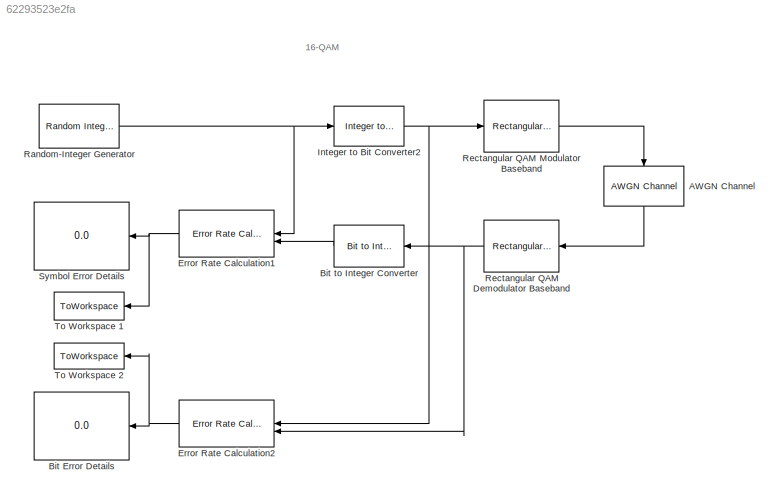
MODEL slx_62293523e2fa
KIND model
CONFIG AbsTol = 1e-6
CONFIG EnableMultiTasking = off
CONFIG FixedStep = auto
CONFIG MaxStep = auto
CONFIG MinStep = auto
CONFIG PreLoadFcn = EbNo=3;maxNumErrs=100;maxNumBits=1e8;M=8;Tsym=.2;
CONFIG RelTol = 1e-3
CONFIG SampleTimeConstraint = Unconstrained
CONFIG SolverName = FixedStepDiscrete
CONFIG StartTime = 0.0
CONFIG StopTime = inf
BLOCK [Reference] AWGN Channel  REF=commchan3/AWGN
Channel
  NameLocation = left
  SourceBlock = commchan3/AWGN\nChannel
  SourceType = AWGN Channel
  UserDataPersistent = on
BLOCK [Display] Bit Error Details
  Decimation = 1
BLOCK [Reference] Bit to Integer Converter  REF=simulink/Logic and Bit
Operations/Bit to Integer
Converter
  LibrarySourceBlock = commutil2/Bit to Integer\nConverter
  SourceBlock = simulink/Logic and Bit\nOperations/Bit to Integer\nConverter
  SourceType = Bit to Integer Converter
BLOCK [Reference] Error Rate Calculation1  REF=commsink2/Error Rate
Calculation
  SourceBlock = commsink2/Error Rate\nCalculation
  SourceType = Error Rate Calculation
BLOCK [Reference] Error Rate Calculation2  REF=commsink2/Error Rate
Calculation
  SourceBlock = commsink2/Error Rate\nCalculation
  SourceType = Error Rate Calculation
BLOCK [Reference] Integer to Bit Converter2  REF=simulink/Logic and Bit
Operations/Integer to Bit
Converter
  LibrarySourceBlock = commutil2/Integer to Bit\nConverter
  NameLocation = top
  SourceBlock = simulink/Logic and Bit\nOperations/Integer to Bit\nConverter
  SourceType = Integer to Bit Converter
BLOCK [Reference] Random-Integer Generator  REF=commrandsrc3/Random Integer
Generator
  SourceBlock = commrandsrc3/Random Integer\nGenerator
  SourceType = Random Integer Generator
BLOCK [Reference] Rectangular QAM Demodulator Baseband  REF=commdigbbndam3/Rectangular QAM
Demodulator
Baseband
  SourceBlock = commdigbbndam3/Rectangular QAM\nDemodulator\nBaseband
  SourceType = Rectangular QAM Demodulator Baseband
BLOCK [Reference] Rectangular QAM Modulator Baseband  REF=commdigbbndam3/Rectangular QAM
Modulator
Baseband
  SourceBlock = commdigbbndam3/Rectangular QAM\nModulator\nBaseband
  SourceType = Rectangular QAM Modulator Baseband
BLOCK [Display] Symbol Error Details
  Decimation = 1
BLOCK [ToWorkspace] To Workspace 1
  MaxDataPoints = 1
  SampleTime = -1
  VariableName = graySER
BLOCK [ToWorkspace] To Workspace 2
  MaxDataPoints = 1
  SampleTime = -1
  VariableName = grayBER
ANNOTATION (root): 16-QAM
LINE AWGN Channel:1 -> Rectangular QAM Demodulator Baseband:1
LINE Bit to Integer Converter:1 -> Error Rate Calculation1:2
NET Error Rate Calculation1:1 -> Symbol Error Details:1, To Workspace 1:1
NET Error Rate Calculation2:1 -> Bit Error Details:1, To Workspace 2:1
NET Integer to Bit Converter2:1 -> Error Rate Calculation2:1, Rectangular QAM Modulator Baseband:1
NET Random-Integer Generator:1 -> Error Rate Calculation1:1, Integer to Bit Converter2:1
NET Rectangular QAM Demodulator Baseband:1 -> Bit to Integer Converter:1, Error Rate Calculation2:2
LINE Rectangular QAM Modulator Baseband:1 -> AWGN Channel:1
note: NET lines group one-source signal fan-out (src -> all destinations, sorted); 1:1 wires keep LINE
